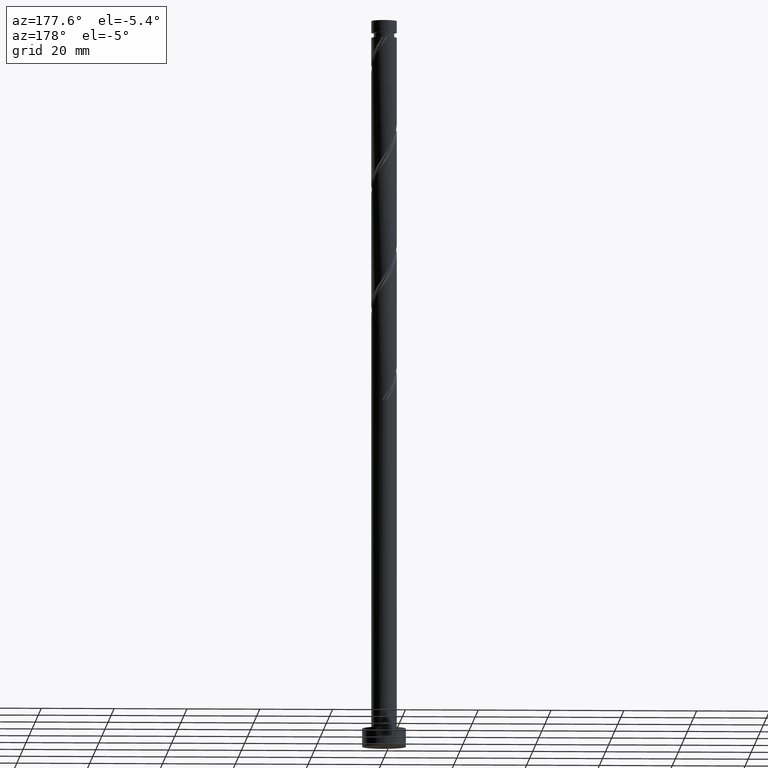
[diagram: clean part render]
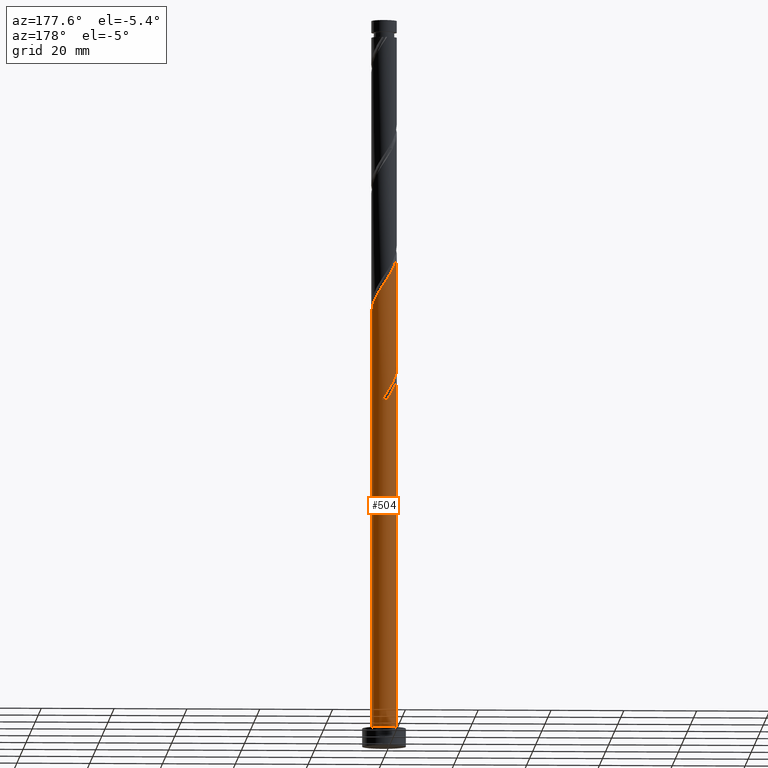
[diagram: same view with one face highlighted and labeled with its STEP entity id]
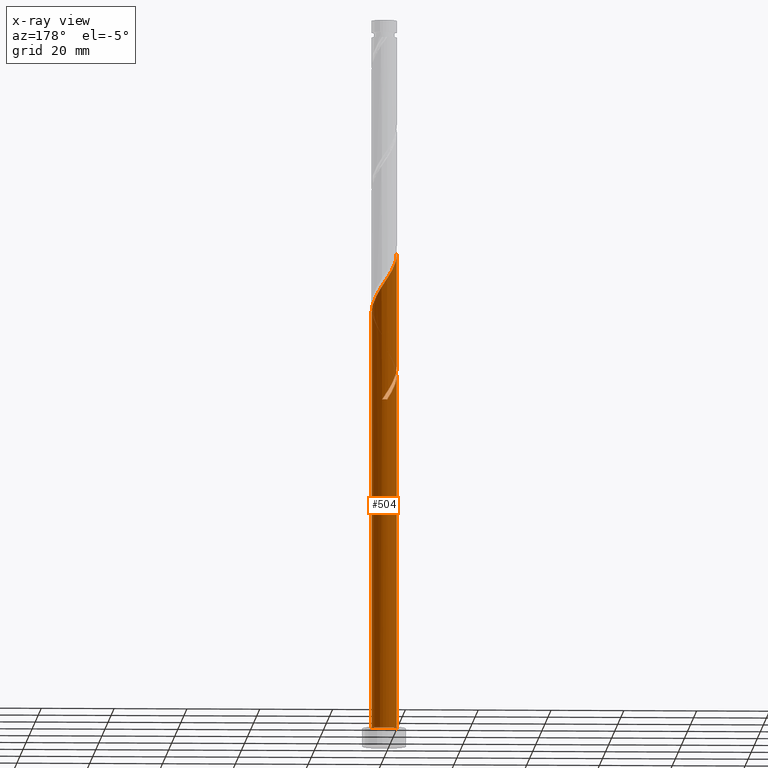
[diagram: x-ray of the same camera — body ghosted, the highlighted face saturated]
A machine part, auxiliary view. The second image highlights one B-rep face of the part: STEP entity #504.
The next image is the same camera in x-ray: the body ghosted, the highlighted face saturated — about 0% of this face is hidden behind the body in this view.
In plain terms, the highlighted cylindrical surface (edge-blend (fillet) strip) has radius 3.5 mm, axis along (-0, -0, -1).
Its self-contained STEP definition (entity closure, byte-faithful):
#10 = CARTESIAN_POINT ( 'NONE',  ( 3.500000000000004441, 5.532900244139408950E-16, 119.3228293089031808 ) ) ;
#67 = CARTESIAN_POINT ( 'NONE',  ( -1.111820922113505361, 3.318712737967942861, 98.16417374189103384 ) ) ;
#106 = VERTEX_POINT ( 'NONE', #329 ) ;
#123 = CARTESIAN_POINT ( 'NONE',  ( -2.663401091800863263, 2.317027466534706370, 132.1919515196688053 ) ) ;
#132 = CARTESIAN_POINT ( 'NONE',  ( 3.430000000000004601, 0.6964912059746350970, 120.3863959641132766 ) ) ;
#141 = CARTESIAN_POINT ( 'NONE',  ( 3.500000000000005773, 0.3517632353407169066, 119.8562556780924382 ) ) ;
#146 = CARTESIAN_POINT ( 'NONE',  ( -2.663401091800863263, 2.317027466534706370, 98.85861818633547671 ) ) ;
#151 = CARTESIAN_POINT ( 'NONE',  ( -3.318712737967946413, 1.111820922113508248, 134.2752848530021765 ) ) ;
#171 = DIRECTION ( 'NONE',  ( 0.000000000000000000, -2.973811673103098237E-14, -1.000000000000000000 ) ) ;
#194 = ORIENTED_EDGE ( 'NONE', *, *, #1125, .T. ) ;
#214 = ORIENTED_EDGE ( 'NONE', *, *, #580, .F. ) ;
#275 = DIRECTION ( 'NONE',  ( -0.000000000000000000, -0.000000000000000000, -1.000000000000000000 ) ) ;
#279 = CARTESIAN_POINT ( 'NONE',  ( -1.148059272699403888, 3.338305193185785225, 96.08084040855766261 ) ) ;
#295 = CARTESIAN_POINT ( 'NONE',  ( 1.548737742842093867, 3.172338736701780793, 125.2475070752243340 ) ) ;
#306 = VERTEX_POINT ( 'NONE', #731 ) ;
#327 = DIRECTION ( 'NONE',  ( -0.000000000000000000, -0.000000000000000000, -1.000000000000000000 ) ) ;
#329 = CARTESIAN_POINT ( 'NONE',  ( -0.6964912059746348749, 3.430000000000004601, 95.38639596411324817 ) ) ;
#336 = CARTESIAN_POINT ( 'NONE',  ( -0.2149904810675269118, 3.493390773024163121, 96.77528485300214811 ) ) ;
#345 = VECTOR ( 'NONE', #1150, 1000.000000000000000 ) ;
#356 = CARTESIAN_POINT ( 'NONE',  ( -2.622221531993306876, 2.318179077886495243, 100.9419515196688053 ) ) ;
#361 = ORIENTED_EDGE ( 'NONE', *, *, #387, .F. ) ;
#364 = CARTESIAN_POINT ( 'NONE',  ( 0.2449231392498675275, 3.521694806814218204, 96.08084040855767682 ) ) ;
#377 = VECTOR ( 'NONE', #327, 1000.000000000000000 ) ;
#387 = EDGE_CURVE ( 'NONE', #306, #1190, #563, .T. ) ;
#412 = CARTESIAN_POINT ( 'NONE',  ( 2.317027466534709035, 2.663401091800861487, 123.8586181863354199 ) ) ;
#424 = DIRECTION ( 'NONE',  ( -1.000000000000000000, 0.000000000000000000, 0.000000000000000000 ) ) ;
#434 = DIRECTION ( 'NONE',  ( -0.000000000000000000, -0.000000000000000000, -1.000000000000000000 ) ) ;
#470 = CARTESIAN_POINT ( 'NONE',  ( 0.000000000000000000, 0.000000000000000000, 95.38639596411336186 ) ) ;
#477 = CARTESIAN_POINT ( 'NONE',  ( -0.6749041013849211845, 3.465086739234106705, 97.46972929744657677 ) ) ;
#478 = CARTESIAN_POINT ( 'NONE',  ( -3.500000000000000000, 0.000000000000000000, 200.0000000000000000 ) ) ;
#479 = CARTESIAN_POINT ( 'NONE',  ( -3.500000000000003997, 0.1075968308018612207, 102.4929989542083888 ) ) ;
#482 = EDGE_CURVE ( 'NONE', #1226, #768, #1156, .T. ) ;
#496 = CARTESIAN_POINT ( 'NONE',  ( -3.500000000000000000, 4.411366410867935127E-15, 104.7832959526566299 ) ) ;
#504 = ADVANCED_FACE ( 'NONE', ( #833 ), #959, .T. ) ;
#552 = CARTESIAN_POINT ( 'NONE',  ( 1.111820922113509580, 3.318712737967945969, 125.9419515196688053 ) ) ;
#563 =( BOUNDED_CURVE ( )  B_SPLINE_CURVE ( 2, ( #496, #635, #1040, #1554, #1063, #1144, #356, #892, #1684, #1431, #67, #477, #336, #364, #627 ),
 .UNSPECIFIED., .F., .T. ) 
 B_SPLINE_CURVE_WITH_KNOTS ( ( 3, 2, 2, 2, 2, 2, 2, 3 ),
 ( 0.9295317669814464612, 0.9375000000000000000, 0.9479166666666666297, 0.9583333333333333703, 0.9687500000000000000, 0.9791666666666666297, 0.9895833333333333703, 1.000000000000000000 ),
 .UNSPECIFIED. ) 
 CURVE ( )  GEOMETRIC_REPRESENTATION_ITEM ( )  RATIONAL_B_SPLINE_CURVE ( ( 0.9062941362546423907, 0.9031415850403469170, 0.9090909090909222723, 0.9013135103398406400, 0.9090909090909222723, 0.9013135103398406400, 0.9090909090909222723, 0.9013135103398406400, 0.9090909090909222723, 0.9013135103398406400, 0.9090909090909222723, 0.9013135103398406400, 0.9090909090909222723, 0.9013135103398406400, 0.9090909090909222723 ) ) 
 REPRESENTATION_ITEM ( '' )  );
#568 = CARTESIAN_POINT ( 'NONE',  ( -2.318179077886497019, 2.622221531993310872, 98.16417374189104805 ) ) ;
#580 = EDGE_CURVE ( 'NONE', #1226, #822, #662, .T. ) ;
#587 = ORIENTED_EDGE ( 'NONE', *, *, #665, .F. ) ;
#592 = ORIENTED_EDGE ( 'NONE', *, *, #813, .F. ) ;
#604 = CARTESIAN_POINT ( 'NONE',  ( -3.500000000000000000, 0.000000000000000000, 5.000000000000000000 ) ) ;
#606 = CARTESIAN_POINT ( 'NONE',  ( -3.465086739234110702, 0.6749041013849228499, 101.6363959641132197 ) ) ;
#627 = CARTESIAN_POINT ( 'NONE',  ( 0.6964912059746359851, 3.429999999999999272, 95.38639596411324817 ) ) ;
#635 = CARTESIAN_POINT ( 'NONE',  ( -3.499999999999999556, 0.3517632353407322832, 104.2498695834673867 ) ) ;
#640 = AXIS2_PLACEMENT_3D ( 'NONE', #1645, #275, #424 ) ;
#662 =( BOUNDED_CURVE ( )  B_SPLINE_CURVE ( 2, ( #10, #141, #132, #1635, #853, #1231, #977, #412, #1497, #295, #552, #1735, #1094, #1072, #1482, #1616, #699, #1657, #984, #123, #968, #949, #151, #1339, #707, #680, #1104 ),
 .UNSPECIFIED., .F., .T. ) 
 B_SPLINE_CURVE_WITH_KNOTS ( ( 3, 2, 2, 2, 2, 2, 2, 2, 2, 2, 2, 2, 2, 3 ),
 ( 0.1795317669814461836, 0.1875000000000000000, 0.1979166666666666297, 0.2083333333333333703, 0.2187500000000000000, 0.2291666666666666297, 0.2395833333333333703, 0.2500000000000000000, 0.2604166666666666297, 0.2708333333333333703, 0.2812500000000000000, 0.2916666666666666297, 0.3020833333333333703, 0.3045317669814464057 ),
 .UNSPECIFIED. ) 
 CURVE ( )  GEOMETRIC_REPRESENTATION_ITEM ( )  RATIONAL_B_SPLINE_CURVE ( ( 0.9062941362546484969, 0.9031415850403525791, 0.9090909090909279344, 0.9013135103398465242, 0.9090909090909279344, 0.9013135103398465242, 0.9090909090909279344, 0.9013135103398465242, 0.9090909090909279344, 0.9013135103398465242, 0.9090909090909279344, 0.9013135103398465242, 0.9090909090909279344, 0.9013135103398465242, 0.9090909090909279344, 0.9013135103398465242, 0.9090909090909279344, 0.9013135103398465242, 0.9090909090909279344, 0.9013135103398465242, 0.9090909090909279344, 0.9013135103398465242, 0.9090909090909279344, 0.9013135103398465242, 0.9090909090909279344, 0.9072628343904216575, 0.9062941362546482749 ) ) 
 REPRESENTATION_ITEM ( '' )  );
#665 = EDGE_CURVE ( 'NONE', #822, #306, #1551, .T. ) ;
#676 = CARTESIAN_POINT ( 'NONE',  ( -3.500000000000004441, -2.736542553182464498E-15, 102.6561626422365237 ) ) ;
#680 = CARTESIAN_POINT ( 'NONE',  ( -3.500000000000003997, 0.1075968308018532688, 135.8263322875416748 ) ) ;
#699 = CARTESIAN_POINT ( 'NONE',  ( -1.560508168335767554, 3.132860395318850522, 130.1086181863354909 ) ) ;
#704 = CARTESIAN_POINT ( 'NONE',  ( -2.917869914251323582, 1.932882604688400452, 99.55306263077991957 ) ) ;
#707 = CARTESIAN_POINT ( 'NONE',  ( -3.493390773024166229, 0.2149904810675284106, 135.6641737418910338 ) ) ;
#710 = LINE ( 'NONE', #478, #377 ) ;
#731 = CARTESIAN_POINT ( 'NONE',  ( -3.500000000000000000, 4.411366410867935127E-15, 104.7832959526566299 ) ) ;
#746 = VERTEX_POINT ( 'NONE', #676 ) ;
#768 = VERTEX_POINT ( 'NONE', #1492 ) ;
#779 = CIRCLE ( 'NONE', #1243, 3.500000000000000000 ) ;
#813 = EDGE_CURVE ( 'NONE', #106, #746, #1574, .T. ) ;
#822 = VERTEX_POINT ( 'NONE', #1263 ) ;
#833 = FACE_OUTER_BOUND ( 'NONE', #1693, .T. ) ;
#835 = EDGE_CURVE ( 'NONE', #106, #1190, #779, .T. ) ;
#840 = CARTESIAN_POINT ( 'NONE',  ( -1.560508168335767554, 3.132860395318850522, 96.77528485300216232 ) ) ;
#853 = CARTESIAN_POINT ( 'NONE',  ( 3.132860395318851410, 1.560508168335765555, 121.7752848530021765 ) ) ;
#892 = CARTESIAN_POINT ( 'NONE',  ( -2.317027466534702818, 2.663401091800861487, 100.2475070752243624 ) ) ;
#949 = CARTESIAN_POINT ( 'NONE',  ( -3.172338736701781237, 1.548737742842092535, 133.5808404085576626 ) ) ;
#959 = CYLINDRICAL_SURFACE ( 'NONE', #640, 3.500000000000000000 ) ;
#968 = CARTESIAN_POINT ( 'NONE',  ( -2.917869914251323582, 1.932882604688400452, 132.8863959641132908 ) ) ;
#977 = CARTESIAN_POINT ( 'NONE',  ( 2.622221531993312205, 2.318179077886495687, 123.1641737418910338 ) ) ;
#984 = CARTESIAN_POINT ( 'NONE',  ( -2.318179077886497019, 2.622221531993310872, 131.4975070752243766 ) ) ;
#989 = CARTESIAN_POINT ( 'NONE',  ( 0.6964912059746359851, 3.429999999999999272, 95.38639596411324817 ) ) ;
#1005 = AXIS2_PLACEMENT_3D ( 'NONE', #1205, #1741, #1639 ) ;
#1040 = CARTESIAN_POINT ( 'NONE',  ( -3.429999999999999272, 0.6964912059746354300, 103.7197292974465910 ) ) ;
#1063 = CARTESIAN_POINT ( 'NONE',  ( -3.132860395318845192, 1.560508168335765999, 102.3308404085576768 ) ) ;
#1072 = CARTESIAN_POINT ( 'NONE',  ( -0.2449231392498637250, 3.521694806814221756, 128.0252848530020913 ) ) ;
#1094 = CARTESIAN_POINT ( 'NONE',  ( 0.2149904810675306865, 3.493390773024166229, 127.3308404085576910 ) ) ;
#1101 = CARTESIAN_POINT ( 'NONE',  ( -3.318712737967946413, 1.111820922113508248, 100.9419515196688053 ) ) ;
#1104 = CARTESIAN_POINT ( 'NONE',  ( -3.500000000000004441, -2.736542553182464498E-15, 135.9894959755698380 ) ) ;
#1125 = EDGE_CURVE ( 'NONE', #768, #1249, #1720, .T. ) ;
#1137 = VECTOR ( 'NONE', #434, 1000.000000000000000 ) ;
#1144 = CARTESIAN_POINT ( 'NONE',  ( -2.927415597451910045, 1.972957063972128333, 101.6363959641132624 ) ) ;
#1150 = DIRECTION ( 'NONE',  ( -0.000000000000000000, -0.000000000000000000, -1.000000000000000000 ) ) ;
#1156 = LINE ( 'NONE', #1694, #1137 ) ;
#1190 = VERTEX_POINT ( 'NONE', #989 ) ;
#1205 = CARTESIAN_POINT ( 'NONE',  ( 0.000000000000000000, 0.000000000000000000, 5.000000000000000000 ) ) ;
#1224 = EDGE_CURVE ( 'NONE', #746, #1249, #710, .T. ) ;
#1226 = VERTEX_POINT ( 'NONE', #1650 ) ;
#1227 = CARTESIAN_POINT ( 'NONE',  ( -3.172338736701781237, 1.548737742842092535, 100.2475070752243198 ) ) ;
#1231 = CARTESIAN_POINT ( 'NONE',  ( 2.927415597451915374, 1.972957063972127667, 122.4697292974465626 ) ) ;
#1243 = AXIS2_PLACEMENT_3D ( 'NONE', #470, #171, #1557 ) ;
#1249 = VERTEX_POINT ( 'NONE', #604 ) ;
#1263 = CARTESIAN_POINT ( 'NONE',  ( -3.500000000000004441, -2.736542553182464498E-15, 135.9894959755698380 ) ) ;
#1339 = CARTESIAN_POINT ( 'NONE',  ( -3.465086739234110702, 0.6749041013849228499, 134.9697292974465483 ) ) ;
#1374 = CARTESIAN_POINT ( 'NONE',  ( -3.493390773024166229, 0.2149904810675284106, 102.3308404085577052 ) ) ;
#1393 = CARTESIAN_POINT ( 'NONE',  ( -3.500000000000004441, -2.736542553182464498E-15, 102.6561626422365237 ) ) ;
#1431 = CARTESIAN_POINT ( 'NONE',  ( -1.548737742842089427, 3.172338736701778128, 98.85861818633546250 ) ) ;
#1482 = CARTESIAN_POINT ( 'NONE',  ( -0.6964912059746348749, 3.430000000000004601, 128.7197292974466052 ) ) ;
#1492 = CARTESIAN_POINT ( 'NONE',  ( 3.500000000000000000, 4.286263797015736595E-16, 5.000000000000000000 ) ) ;
#1497 = CARTESIAN_POINT ( 'NONE',  ( 1.932882604688401118, 2.917869914251323138, 124.5530626307799338 ) ) ;
#1507 = CARTESIAN_POINT ( 'NONE',  ( -1.972957063972129887, 2.927415597451914042, 97.46972929744657677 ) ) ;
#1551 = LINE ( 'NONE', #1690, #345 ) ;
#1554 = CARTESIAN_POINT ( 'NONE',  ( -3.338305193185781672, 1.148059272699403222, 103.0252848530021481 ) ) ;
#1557 = DIRECTION ( 'NONE',  ( 0.000000000000000000, 1.000000000000000000, -3.172065784643304491E-14 ) ) ;
#1573 = ORIENTED_EDGE ( 'NONE', *, *, #1224, .F. ) ;
#1574 =( BOUNDED_CURVE ( )  B_SPLINE_CURVE ( 2, ( #1751, #279, #840, #1507, #568, #146, #704, #1227, #1101, #606, #1374, #479, #1393 ),
 .UNSPECIFIED., .F., .T. ) 
 B_SPLINE_CURVE_WITH_KNOTS ( ( 3, 2, 2, 2, 2, 2, 3 ),
 ( 0.000000000000000000, 0.01041666666666662966, 0.02083333333333337034, 0.03125000000000000000, 0.04166666666666662966, 0.05208333333333337034, 0.05453176698144622525 ),
 .UNSPECIFIED. ) 
 CURVE ( )  GEOMETRIC_REPRESENTATION_ITEM ( )  RATIONAL_B_SPLINE_CURVE ( ( 0.9090909090909279344, 0.9013135103398465242, 0.9090909090909279344, 0.9013135103398465242, 0.9090909090909279344, 0.9013135103398465242, 0.9090909090909279344, 0.9013135103398465242, 0.9090909090909279344, 0.9013135103398465242, 0.9090909090909279344, 0.9072628343904217685, 0.9062941362546482749 ) ) 
 REPRESENTATION_ITEM ( '' )  );
#1580 = ORIENTED_EDGE ( 'NONE', *, *, #835, .T. ) ;
#1616 = CARTESIAN_POINT ( 'NONE',  ( -1.148059272699403888, 3.338305193185785225, 129.4141737418909770 ) ) ;
#1635 = CARTESIAN_POINT ( 'NONE',  ( 3.338305193185786557, 1.148059272699402777, 121.0808404085577052 ) ) ;
#1639 = DIRECTION ( 'NONE',  ( 1.000000000000000000, 0.000000000000000000, 0.000000000000000000 ) ) ;
#1645 = CARTESIAN_POINT ( 'NONE',  ( 0.000000000000000000, 0.000000000000000000, 200.0000000000000000 ) ) ;
#1650 = CARTESIAN_POINT ( 'NONE',  ( 3.500000000000004441, 5.532900244139408950E-16, 119.3228293089031808 ) ) ;
#1657 = CARTESIAN_POINT ( 'NONE',  ( -1.972957063972129887, 2.927415597451914042, 130.8030626307798627 ) ) ;
#1684 = CARTESIAN_POINT ( 'NONE',  ( -1.932882604688397121, 2.917869914251320029, 99.55306263077991957 ) ) ;
#1690 = CARTESIAN_POINT ( 'NONE',  ( -3.500000000000000000, 0.000000000000000000, 200.0000000000000000 ) ) ;
#1693 = EDGE_LOOP ( 'NONE', ( #214, #1714, #194, #1573, #592, #1580, #361, #587 ) ) ;
#1694 = CARTESIAN_POINT ( 'NONE',  ( 3.500000000000000000, 4.286263797015736595E-16, 200.0000000000000000 ) ) ;
#1714 = ORIENTED_EDGE ( 'NONE', *, *, #482, .T. ) ;
#1720 = CIRCLE ( 'NONE', #1005, 3.500000000000000000 ) ;
#1735 = CARTESIAN_POINT ( 'NONE',  ( 0.6749041013849248483, 3.465086739234110258, 126.6363959641132197 ) ) ;
#1741 = DIRECTION ( 'NONE',  ( 0.000000000000000000, 0.000000000000000000, 1.000000000000000000 ) ) ;
#1751 = CARTESIAN_POINT ( 'NONE',  ( -0.6964912059746348749, 3.430000000000004601, 95.38639596411324817 ) ) ;